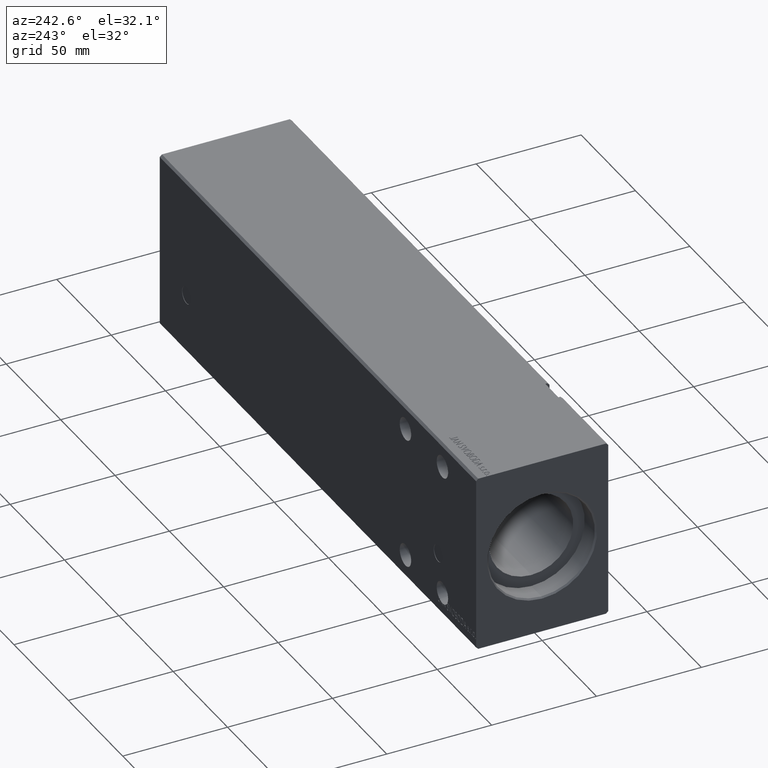
[diagram: clean part render]
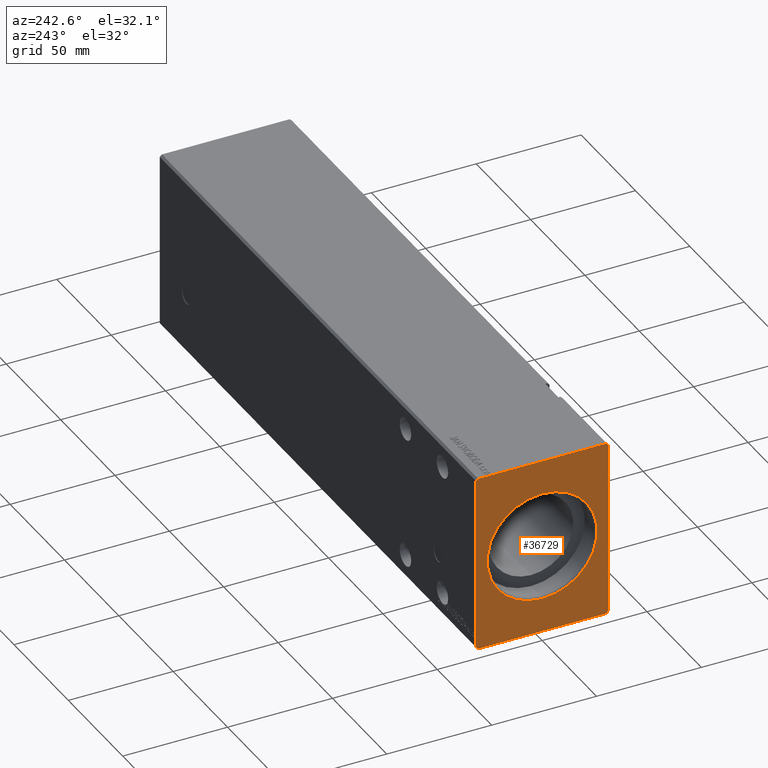
[diagram: same view with one face highlighted and labeled with its STEP entity id]
A machine part, auxiliary view. The second image highlights one B-rep face of the part: STEP entity #36729.
In plain terms, the highlighted planar face has unit normal (1, 0, 0).
Its self-contained STEP definition (entity closure, byte-faithful):
#33 = ORIENTED_EDGE ( 'NONE', *, *, #27477, .T. ) ;
#441 = VERTEX_POINT ( 'NONE', #1679 ) ;
#704 = DIRECTION ( 'NONE',  ( 1.000000000000000000, 0.000000000000000000, 0.000000000000000000 ) ) ;
#998 = DIRECTION ( 'NONE',  ( 1.000000000000000000, 0.000000000000000000, 0.000000000000000000 ) ) ;
#1679 = CARTESIAN_POINT ( 'NONE',  ( 0.000000000000000000, 30.50000000000001421, 42.49999999999999289 ) ) ;
#1698 = VERTEX_POINT ( 'NONE', #17651 ) ;
#1817 = CARTESIAN_POINT ( 'NONE',  ( 0.000000000000000000, 31.50000000000001421, 41.49999999999999289 ) ) ;
#1839 = CARTESIAN_POINT ( 'NONE',  ( 0.000000000000000000, 31.50000000000001421, 41.49999999999999289 ) ) ;
#3742 = ORIENTED_EDGE ( 'NONE', *, *, #28992, .F. ) ;
#4816 = CARTESIAN_POINT ( 'NONE',  ( 0.000000000000000000, -31.50000000000000000, -41.50000000000000711 ) ) ;
#4859 = DIRECTION ( 'NONE',  ( 0.000000000000000000, 1.000000000000000000, 0.000000000000000000 ) ) ;
#5506 = CARTESIAN_POINT ( 'NONE',  ( 0.000000000000000000, 30.50000000000001421, 42.49999999999999289 ) ) ;
#5521 = VECTOR ( 'NONE', #36451, 999.9999999999998863 ) ;
#5644 = VERTEX_POINT ( 'NONE', #6902 ) ;
#5659 = LINE ( 'NONE', #1817, #23447 ) ;
#6902 = CARTESIAN_POINT ( 'NONE',  ( 0.000000000000000000, -31.50000000000000000, 41.49999999999999289 ) ) ;
#7596 = LINE ( 'NONE', #34211, #18461 ) ;
#7628 = ORIENTED_EDGE ( 'NONE', *, *, #24856, .F. ) ;
#7830 = DIRECTION ( 'NONE',  ( 0.000000000000000000, 0.000000000000000000, -1.000000000000000000 ) ) ;
#8493 = CARTESIAN_POINT ( 'NONE',  ( 0.000000000000000000, -30.50000000000000711, -42.50000000000000711 ) ) ;
#8669 = CARTESIAN_POINT ( 'NONE',  ( 0.000000000000000000, -31.50000000000000000, -41.50000000000000711 ) ) ;
#8706 = ORIENTED_EDGE ( 'NONE', *, *, #29223, .F. ) ;
#9930 = ORIENTED_EDGE ( 'NONE', *, *, #17812, .F. ) ;
#9934 = EDGE_CURVE ( 'NONE', #34507, #41925, #33361, .T. ) ;
#10278 = LINE ( 'NONE', #40264, #5521 ) ;
#11452 = CARTESIAN_POINT ( 'NONE',  ( 0.000000000000000000, 0.000000000000000000, 26.20000000000000284 ) ) ;
#12353 = LINE ( 'NONE', #35528, #12445 ) ;
#12368 = ORIENTED_EDGE ( 'NONE', *, *, #9934, .F. ) ;
#12445 = VECTOR ( 'NONE', #41069, 1000.000000000000000 ) ;
#13125 = VECTOR ( 'NONE', #4859, 1000.000000000000000 ) ;
#14079 = ORIENTED_EDGE ( 'NONE', *, *, #33306, .F. ) ;
#14147 = DIRECTION ( 'NONE',  ( 0.000000000000000000, 0.000000000000000000, -1.000000000000000000 ) ) ;
#14448 = ORIENTED_EDGE ( 'NONE', *, *, #28055, .T. ) ;
#14531 = AXIS2_PLACEMENT_3D ( 'NONE', #30203, #998, #7830 ) ;
#15796 = DIRECTION ( 'NONE',  ( 0.000000000000000000, 0.000000000000000000, -1.000000000000000000 ) ) ;
#17226 = EDGE_LOOP ( 'NONE', ( #31578, #7628, #3742, #35734, #12368, #14079, #8706, #9930 ) ) ;
#17421 = PLANE ( 'NONE',  #14531 ) ;
#17651 = CARTESIAN_POINT ( 'NONE',  ( 0.000000000000000000, 3.208574613766065694E-15, -26.20000000000000284 ) ) ;
#17793 = VECTOR ( 'NONE', #18521, 1000.000000000000000 ) ;
#17812 = EDGE_CURVE ( 'NONE', #441, #41900, #38083, .T. ) ;
#18007 = VECTOR ( 'NONE', #41062, 1000.000000000000000 ) ;
#18430 = AXIS2_PLACEMENT_3D ( 'NONE', #30329, #704, #14147 ) ;
#18461 = VECTOR ( 'NONE', #25227, 999.9999999999998863 ) ;
#18521 = DIRECTION ( 'NONE',  ( 0.000000000000000000, -1.000000000000000000, 0.000000000000000000 ) ) ;
#19633 = CARTESIAN_POINT ( 'NONE',  ( 0.000000000000000000, 30.50000000000001776, -42.50000000000000711 ) ) ;
#20523 = CARTESIAN_POINT ( 'NONE',  ( 0.000000000000000000, -30.50000000000000355, 42.49999999999999289 ) ) ;
#20827 = FACE_OUTER_BOUND ( 'NONE', #17226, .T. ) ;
#21073 = LINE ( 'NONE', #37025, #18007 ) ;
#21262 = FACE_BOUND ( 'NONE', #40813, .T. ) ;
#22157 = EDGE_CURVE ( 'NONE', #41925, #34958, #39988, .T. ) ;
#23328 = CARTESIAN_POINT ( 'NONE',  ( 0.000000000000000000, -30.50000000000000711, -42.50000000000000711 ) ) ;
#23447 = VECTOR ( 'NONE', #40999, 1000.000000000000114 ) ;
#24856 = EDGE_CURVE ( 'NONE', #38162, #29847, #21073, .T. ) ;
#25227 = DIRECTION ( 'NONE',  ( 0.000000000000000000, 0.7071067811865462405, 0.7071067811865489050 ) ) ;
#25387 = CARTESIAN_POINT ( 'NONE',  ( 0.000000000000000000, 0.000000000000000000, 0.000000000000000000 ) ) ;
#25946 = VERTEX_POINT ( 'NONE', #11452 ) ;
#26574 = DIRECTION ( 'NONE',  ( 1.000000000000000000, 0.000000000000000000, 0.000000000000000000 ) ) ;
#27477 = EDGE_CURVE ( 'NONE', #1698, #25946, #33449, .T. ) ;
#28055 = EDGE_CURVE ( 'NONE', #25946, #1698, #36191, .T. ) ;
#28992 = EDGE_CURVE ( 'NONE', #34958, #38162, #7596, .T. ) ;
#29223 = EDGE_CURVE ( 'NONE', #41900, #5644, #10278, .T. ) ;
#29847 = VERTEX_POINT ( 'NONE', #1839 ) ;
#30203 = CARTESIAN_POINT ( 'NONE',  ( 0.000000000000000000, 0.000000000000000000, 0.000000000000000000 ) ) ;
#30329 = CARTESIAN_POINT ( 'NONE',  ( 0.000000000000000000, 0.000000000000000000, 0.000000000000000000 ) ) ;
#31578 = ORIENTED_EDGE ( 'NONE', *, *, #39392, .F. ) ;
#33306 = EDGE_CURVE ( 'NONE', #5644, #34507, #12353, .T. ) ;
#33361 = LINE ( 'NONE', #4816, #38093 ) ;
#33449 = CIRCLE ( 'NONE', #35499, 26.20000000000000284 ) ;
#34211 = CARTESIAN_POINT ( 'NONE',  ( 0.000000000000000000, 30.50000000000001776, -42.50000000000000711 ) ) ;
#34507 = VERTEX_POINT ( 'NONE', #8669 ) ;
#34958 = VERTEX_POINT ( 'NONE', #19633 ) ;
#35499 = AXIS2_PLACEMENT_3D ( 'NONE', #25387, #26574, #15796 ) ;
#35528 = CARTESIAN_POINT ( 'NONE',  ( 0.000000000000000000, -31.50000000000000000, 41.49999999999999289 ) ) ;
#35734 = ORIENTED_EDGE ( 'NONE', *, *, #22157, .F. ) ;
#36191 = CIRCLE ( 'NONE', #18430, 26.20000000000000284 ) ;
#36451 = DIRECTION ( 'NONE',  ( 0.000000000000000000, -0.7071067811865462405, -0.7071067811865489050 ) ) ;
#36729 = ADVANCED_FACE ( 'NONE', ( #21262, #20827 ), #17421, .F. ) ;
#37025 = CARTESIAN_POINT ( 'NONE',  ( 0.000000000000000000, 31.50000000000001421, -41.50000000000000711 ) ) ;
#37403 = DIRECTION ( 'NONE',  ( 0.000000000000000000, 0.7071067811865451302, -0.7071067811865500152 ) ) ;
#38083 = LINE ( 'NONE', #5506, #17793 ) ;
#38093 = VECTOR ( 'NONE', #37403, 1000.000000000000114 ) ;
#38162 = VERTEX_POINT ( 'NONE', #39374 ) ;
#39374 = CARTESIAN_POINT ( 'NONE',  ( 0.000000000000000000, 31.50000000000001421, -41.50000000000000711 ) ) ;
#39392 = EDGE_CURVE ( 'NONE', #29847, #441, #5659, .T. ) ;
#39988 = LINE ( 'NONE', #8493, #13125 ) ;
#40264 = CARTESIAN_POINT ( 'NONE',  ( 0.000000000000000000, -30.50000000000000355, 42.49999999999999289 ) ) ;
#40813 = EDGE_LOOP ( 'NONE', ( #14448, #33 ) ) ;
#40999 = DIRECTION ( 'NONE',  ( 0.000000000000000000, -0.7071067811865474617, 0.7071067811865474617 ) ) ;
#41062 = DIRECTION ( 'NONE',  ( 0.000000000000000000, 0.000000000000000000, 1.000000000000000000 ) ) ;
#41069 = DIRECTION ( 'NONE',  ( 0.000000000000000000, 0.000000000000000000, -1.000000000000000000 ) ) ;
#41900 = VERTEX_POINT ( 'NONE', #20523 ) ;
#41925 = VERTEX_POINT ( 'NONE', #23328 ) ;